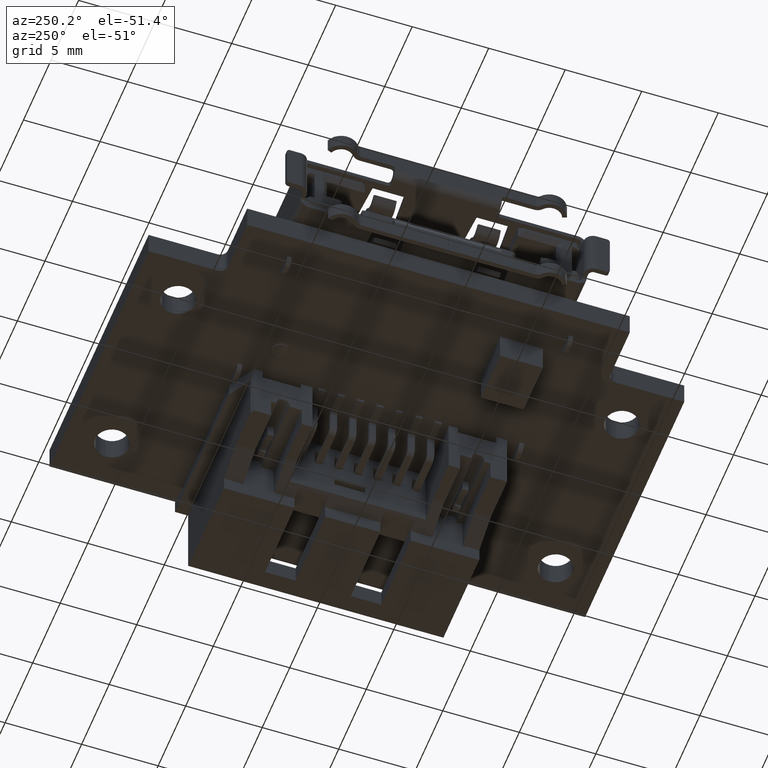
[diagram: clean part render]
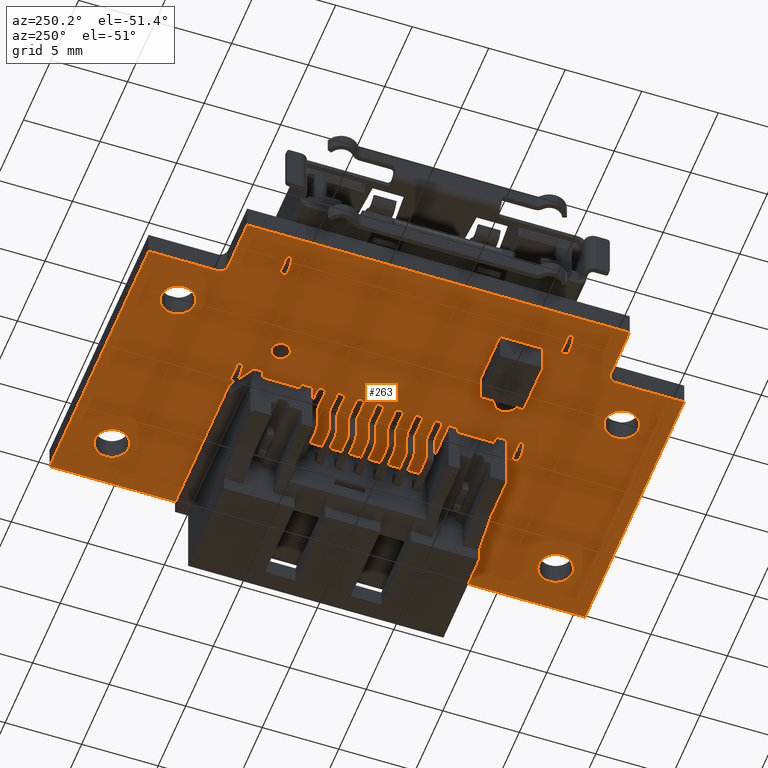
[diagram: same view with one face highlighted and labeled with its STEP entity id]
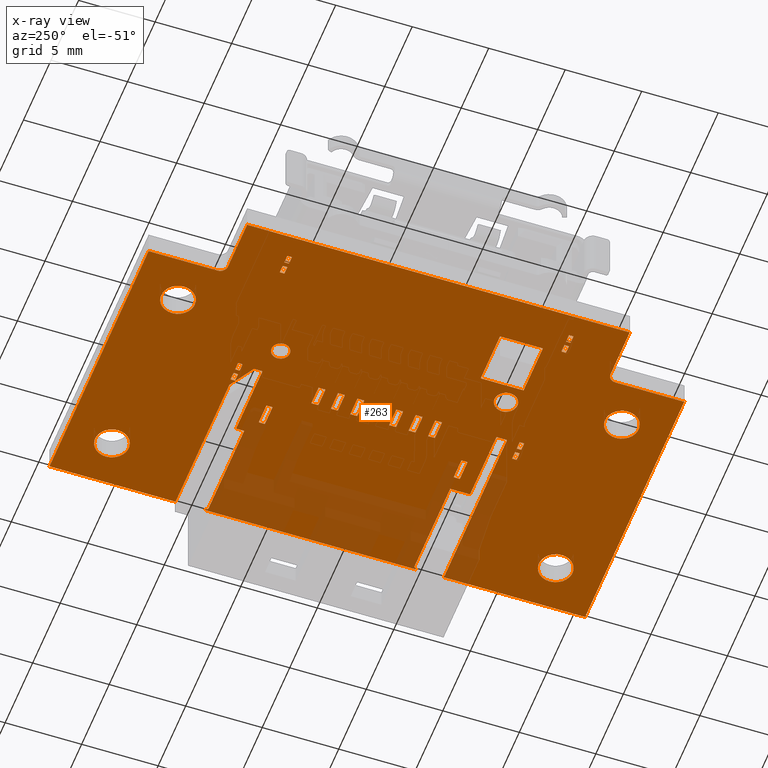
[diagram: x-ray of the same camera — body ghosted, the highlighted face saturated]
A machine part, auxiliary view. The second image highlights one B-rep face of the part: STEP entity #263.
The next image is the same camera in x-ray: the body ghosted, the highlighted face saturated — about 12% of this face is hidden behind the body in this view.
In plain terms, the highlighted planar face has unit normal (0, 0, -1).
Its self-contained STEP definition (entity closure, byte-faithful):
#263=ADVANCED_FACE('',(#2965,#2966,#2967,#2968,#2969,#2970,#2971,#2972,#2973,
#2974,#2975,#2976,#2977,#2978,#2979,#2980,#2981,#2982,#2983,#2984,#2985,
#2986,#2987,#2988,#1605),#12381,.T.);
#1605=FACE_OUTER_BOUND('',#3068,.F.);
#2965=FACE_BOUND('',#3044,.F.);
#2966=FACE_BOUND('',#3045,.F.);
#2967=FACE_BOUND('',#3046,.F.);
#2968=FACE_BOUND('',#3047,.F.);
#2969=FACE_BOUND('',#3048,.F.);
#2970=FACE_BOUND('',#3049,.F.);
#2971=FACE_BOUND('',#3050,.F.);
#2972=FACE_BOUND('',#3051,.F.);
#2973=FACE_BOUND('',#3052,.F.);
#2974=FACE_BOUND('',#3053,.F.);
#2975=FACE_BOUND('',#3054,.F.);
#2976=FACE_BOUND('',#3055,.F.);
#2977=FACE_BOUND('',#3056,.F.);
#2978=FACE_BOUND('',#3057,.F.);
#2979=FACE_BOUND('',#3058,.F.);
#2980=FACE_BOUND('',#3059,.F.);
#2981=FACE_BOUND('',#3060,.F.);
#2982=FACE_BOUND('',#3061,.F.);
#2983=FACE_BOUND('',#3062,.F.);
#2984=FACE_BOUND('',#3063,.F.);
#2985=FACE_BOUND('',#3064,.F.);
#2986=FACE_BOUND('',#3065,.F.);
#2987=FACE_BOUND('',#3066,.F.);
#2988=FACE_BOUND('',#3067,.F.);
#3044=EDGE_LOOP('',(#4547,#4548,#4549,#4550));
#3045=EDGE_LOOP('',(#4551,#4552,#4553,#4554));
#3046=EDGE_LOOP('',(#4555,#4556,#4557,#4558));
#3047=EDGE_LOOP('',(#4559,#4560,#4561,#4562));
#3048=EDGE_LOOP('',(#4563,#4564,#4565,#4566));
#3049=EDGE_LOOP('',(#4567,#4568,#4569,#4570));
#3050=EDGE_LOOP('',(#4571,#4572,#4573,#4574));
#3051=EDGE_LOOP('',(#4575,#4576,#4577,#4578));
#3052=EDGE_LOOP('',(#4579,#4580,#4581,#4582));
#3053=EDGE_LOOP('',(#4583,#4584));
#3054=EDGE_LOOP('',(#4585,#4586));
#3055=EDGE_LOOP('',(#4587,#4588));
#3056=EDGE_LOOP('',(#4589,#4590));
#3057=EDGE_LOOP('',(#4591,#4592,#4593,#4594));
#3058=EDGE_LOOP('',(#4595,#4596,#4597,#4598));
#3059=EDGE_LOOP('',(#4599,#4600,#4601,#4602));
#3060=EDGE_LOOP('',(#4603,#4604,#4605,#4606));
#3061=EDGE_LOOP('',(#4607,#4608,#4609,#4610));
#3062=EDGE_LOOP('',(#4611,#4612,#4613,#4614));
#3063=EDGE_LOOP('',(#4615,#4616,#4617,#4618));
#3064=EDGE_LOOP('',(#4619,#4620,#4621,#4622));
#3065=EDGE_LOOP('',(#4623,#4624));
#3066=EDGE_LOOP('',(#4625,#4626));
#3067=EDGE_LOOP('',(#4627,#4628,#4629,#4630));
#3068=EDGE_LOOP('',(#4631,#4632,#4633,#4634,#4635,#4636,#4637,#4638,#4639,
#4640,#4641,#4642,#4643,#4644,#4645,#4646,#4647,#4648,#4649,#4650,#4651,
#4652,#4653,#4654,#4655,#4656));
#4547=ORIENTED_EDGE('',*,*,#13999,.T.);
#4548=ORIENTED_EDGE('',*,*,#13997,.T.);
#4549=ORIENTED_EDGE('',*,*,#13998,.F.);
#4550=ORIENTED_EDGE('',*,*,#13996,.T.);
#4551=ORIENTED_EDGE('',*,*,#13995,.T.);
#4552=ORIENTED_EDGE('',*,*,#13993,.T.);
#4553=ORIENTED_EDGE('',*,*,#13994,.F.);
#4554=ORIENTED_EDGE('',*,*,#13992,.T.);
#4555=ORIENTED_EDGE('',*,*,#13991,.T.);
#4556=ORIENTED_EDGE('',*,*,#13989,.T.);
#4557=ORIENTED_EDGE('',*,*,#13990,.F.);
#4558=ORIENTED_EDGE('',*,*,#13988,.T.);
#4559=ORIENTED_EDGE('',*,*,#13987,.T.);
#4560=ORIENTED_EDGE('',*,*,#13985,.T.);
#4561=ORIENTED_EDGE('',*,*,#13986,.F.);
#4562=ORIENTED_EDGE('',*,*,#13984,.T.);
#4563=ORIENTED_EDGE('',*,*,#13983,.T.);
#4564=ORIENTED_EDGE('',*,*,#13981,.T.);
#4565=ORIENTED_EDGE('',*,*,#13982,.F.);
#4566=ORIENTED_EDGE('',*,*,#13980,.T.);
#4567=ORIENTED_EDGE('',*,*,#13979,.T.);
#4568=ORIENTED_EDGE('',*,*,#13977,.T.);
#4569=ORIENTED_EDGE('',*,*,#13978,.F.);
#4570=ORIENTED_EDGE('',*,*,#13976,.T.);
#4571=ORIENTED_EDGE('',*,*,#13975,.T.);
#4572=ORIENTED_EDGE('',*,*,#13973,.T.);
#4573=ORIENTED_EDGE('',*,*,#13974,.F.);
#4574=ORIENTED_EDGE('',*,*,#13966,.T.);
#4575=ORIENTED_EDGE('',*,*,#13946,.T.);
#4576=ORIENTED_EDGE('',*,*,#13945,.T.);
#4577=ORIENTED_EDGE('',*,*,#13944,.T.);
#4578=ORIENTED_EDGE('',*,*,#13943,.T.);
#4579=ORIENTED_EDGE('',*,*,#13950,.T.);
#4580=ORIENTED_EDGE('',*,*,#13949,.T.);
#4581=ORIENTED_EDGE('',*,*,#13948,.T.);
#4582=ORIENTED_EDGE('',*,*,#13947,.T.);
#4583=ORIENTED_EDGE('',*,*,#14115,.T.);
#4584=ORIENTED_EDGE('',*,*,#14113,.T.);
#4585=ORIENTED_EDGE('',*,*,#14123,.T.);
#4586=ORIENTED_EDGE('',*,*,#14121,.T.);
#4587=ORIENTED_EDGE('',*,*,#14127,.T.);
#4588=ORIENTED_EDGE('',*,*,#14125,.T.);
#4589=ORIENTED_EDGE('',*,*,#14119,.T.);
#4590=ORIENTED_EDGE('',*,*,#14117,.T.);
#4591=ORIENTED_EDGE('',*,*,#14039,.F.);
#4592=ORIENTED_EDGE('',*,*,#14036,.T.);
#4593=ORIENTED_EDGE('',*,*,#14037,.T.);
#4594=ORIENTED_EDGE('',*,*,#14038,.T.);
#4595=ORIENTED_EDGE('',*,*,#14035,.T.);
#4596=ORIENTED_EDGE('',*,*,#14034,.F.);
#4597=ORIENTED_EDGE('',*,*,#14033,.T.);
#4598=ORIENTED_EDGE('',*,*,#14032,.T.);
#4599=ORIENTED_EDGE('',*,*,#14031,.T.);
#4600=ORIENTED_EDGE('',*,*,#14030,.F.);
#4601=ORIENTED_EDGE('',*,*,#14029,.T.);
#4602=ORIENTED_EDGE('',*,*,#14028,.F.);
#4603=ORIENTED_EDGE('',*,*,#14027,.T.);
#4604=ORIENTED_EDGE('',*,*,#14026,.T.);
#4605=ORIENTED_EDGE('',*,*,#14025,.T.);
#4606=ORIENTED_EDGE('',*,*,#14024,.T.);
#4607=ORIENTED_EDGE('',*,*,#14023,.T.);
#4608=ORIENTED_EDGE('',*,*,#14022,.T.);
#4609=ORIENTED_EDGE('',*,*,#14021,.F.);
#4610=ORIENTED_EDGE('',*,*,#14020,.T.);
#4611=ORIENTED_EDGE('',*,*,#14019,.T.);
#4612=ORIENTED_EDGE('',*,*,#14018,.F.);
#4613=ORIENTED_EDGE('',*,*,#14017,.T.);
#4614=ORIENTED_EDGE('',*,*,#14016,.T.);
#4615=ORIENTED_EDGE('',*,*,#14015,.T.);
#4616=ORIENTED_EDGE('',*,*,#14014,.F.);
#4617=ORIENTED_EDGE('',*,*,#14013,.T.);
#4618=ORIENTED_EDGE('',*,*,#14012,.T.);
#4619=ORIENTED_EDGE('',*,*,#14011,.T.);
#4620=ORIENTED_EDGE('',*,*,#14010,.F.);
#4621=ORIENTED_EDGE('',*,*,#14009,.T.);
#4622=ORIENTED_EDGE('',*,*,#14008,.T.);
#4623=ORIENTED_EDGE('',*,*,#14007,.T.);
#4624=ORIENTED_EDGE('',*,*,#14006,.T.);
#4625=ORIENTED_EDGE('',*,*,#14005,.T.);
#4626=ORIENTED_EDGE('',*,*,#14004,.T.);
#4627=ORIENTED_EDGE('',*,*,#13936,.T.);
#4628=ORIENTED_EDGE('',*,*,#13937,.T.);
#4629=ORIENTED_EDGE('',*,*,#13938,.T.);
#4630=ORIENTED_EDGE('',*,*,#13935,.T.);
#4631=ORIENTED_EDGE('',*,*,#14139,.T.);
#4632=ORIENTED_EDGE('',*,*,#14149,.T.);
#4633=ORIENTED_EDGE('',*,*,#14003,.T.);
#4634=ORIENTED_EDGE('',*,*,#13972,.T.);
#4635=ORIENTED_EDGE('',*,*,#13962,.T.);
#4636=ORIENTED_EDGE('',*,*,#13969,.T.);
#4637=ORIENTED_EDGE('',*,*,#13967,.T.);
#4638=ORIENTED_EDGE('',*,*,#13965,.T.);
#4639=ORIENTED_EDGE('',*,*,#13964,.T.);
#4640=ORIENTED_EDGE('',*,*,#14001,.T.);
#4641=ORIENTED_EDGE('',*,*,#13971,.T.);
#4642=ORIENTED_EDGE('',*,*,#13970,.T.);
#4643=ORIENTED_EDGE('',*,*,#13968,.T.);
#4644=ORIENTED_EDGE('',*,*,#13963,.T.);
#4645=ORIENTED_EDGE('',*,*,#13961,.T.);
#4646=ORIENTED_EDGE('',*,*,#13960,.T.);
#4647=ORIENTED_EDGE('',*,*,#13959,.T.);
#4648=ORIENTED_EDGE('',*,*,#14148,.T.);
#4649=ORIENTED_EDGE('',*,*,#14147,.T.);
#4650=ORIENTED_EDGE('',*,*,#14146,.T.);
#4651=ORIENTED_EDGE('',*,*,#14145,.T.);
#4652=ORIENTED_EDGE('',*,*,#14144,.T.);
#4653=ORIENTED_EDGE('',*,*,#14143,.T.);
#4654=ORIENTED_EDGE('',*,*,#14142,.T.);
#4655=ORIENTED_EDGE('',*,*,#14141,.T.);
#4656=ORIENTED_EDGE('',*,*,#14140,.T.);
#12381=PLANE('',#27933);
#13527=CIRCLE('',#27524,0.749962272120906);
#13528=CIRCLE('',#27525,0.749962272120906);
#13529=CIRCLE('',#27526,0.599972297418407);
#13530=CIRCLE('',#27527,0.599972297418407);
#13532=CIRCLE('',#27529,1.1);
#13534=CIRCLE('',#27531,1.1);
#13536=CIRCLE('',#27533,1.1);
#13538=CIRCLE('',#27535,1.1);
#13540=CIRCLE('',#27537,1.1);
#13542=CIRCLE('',#27539,1.1);
#13544=CIRCLE('',#27541,1.1);
#13546=CIRCLE('',#27543,1.1);
#13549=CIRCLE('',#27546,0.5);
#13550=CIRCLE('',#27547,0.5);
#13935=EDGE_CURVE('',#27494,#27493,#17903,.T.);
#13936=EDGE_CURVE('',#27493,#27492,#17904,.T.);
#13937=EDGE_CURVE('',#27492,#27491,#17905,.T.);
#13938=EDGE_CURVE('',#27491,#27494,#17906,.T.);
#13943=EDGE_CURVE('',#27486,#27485,#17911,.T.);
#13944=EDGE_CURVE('',#27484,#27486,#17912,.T.);
#13945=EDGE_CURVE('',#27483,#27484,#17913,.T.);
#13946=EDGE_CURVE('',#27485,#27483,#17914,.T.);
#13947=EDGE_CURVE('',#27482,#27481,#17915,.T.);
#13948=EDGE_CURVE('',#27480,#27482,#17916,.T.);
#13949=EDGE_CURVE('',#27479,#27480,#17917,.T.);
#13950=EDGE_CURVE('',#27481,#27479,#17918,.T.);
#13959=EDGE_CURVE('',#27470,#27469,#17927,.T.);
#13960=EDGE_CURVE('',#27468,#27470,#17928,.T.);
#13961=EDGE_CURVE('',#27467,#27468,#17929,.T.);
#13962=EDGE_CURVE('',#27466,#27465,#17930,.T.);
#13963=EDGE_CURVE('',#27464,#27467,#17931,.T.);
#13964=EDGE_CURVE('',#27463,#27462,#17932,.T.);
#13965=EDGE_CURVE('',#27461,#27463,#17933,.T.);
#13966=EDGE_CURVE('',#27460,#27459,#17934,.T.);
#13967=EDGE_CURVE('',#27458,#27461,#17935,.T.);
#13968=EDGE_CURVE('',#27457,#27464,#17936,.T.);
#13969=EDGE_CURVE('',#27465,#27458,#17937,.T.);
#13970=EDGE_CURVE('',#27456,#27457,#17938,.T.);
#13971=EDGE_CURVE('',#27455,#27456,#17939,.T.);
#13972=EDGE_CURVE('',#27454,#27466,#17940,.T.);
#13973=EDGE_CURVE('',#27453,#27452,#17941,.T.);
#13974=EDGE_CURVE('',#27460,#27452,#17942,.T.);
#13975=EDGE_CURVE('',#27459,#27453,#17943,.T.);
#13976=EDGE_CURVE('',#27451,#27450,#17944,.T.);
#13977=EDGE_CURVE('',#27449,#27448,#17945,.T.);
#13978=EDGE_CURVE('',#27451,#27448,#17946,.T.);
#13979=EDGE_CURVE('',#27450,#27449,#17947,.T.);
#13980=EDGE_CURVE('',#27447,#27446,#17948,.T.);
#13981=EDGE_CURVE('',#27445,#27444,#17949,.T.);
#13982=EDGE_CURVE('',#27447,#27444,#17950,.T.);
#13983=EDGE_CURVE('',#27446,#27445,#17951,.T.);
#13984=EDGE_CURVE('',#27443,#27442,#17952,.T.);
#13985=EDGE_CURVE('',#27441,#27440,#17953,.T.);
#13986=EDGE_CURVE('',#27443,#27440,#17954,.T.);
#13987=EDGE_CURVE('',#27442,#27441,#17955,.T.);
#13988=EDGE_CURVE('',#27439,#27438,#17956,.T.);
#13989=EDGE_CURVE('',#27437,#27436,#17957,.T.);
#13990=EDGE_CURVE('',#27439,#27436,#17958,.T.);
#13991=EDGE_CURVE('',#27438,#27437,#17959,.T.);
#13992=EDGE_CURVE('',#27435,#27434,#17960,.T.);
#13993=EDGE_CURVE('',#27433,#27432,#17961,.T.);
#13994=EDGE_CURVE('',#27435,#27432,#17962,.T.);
#13995=EDGE_CURVE('',#27434,#27433,#17963,.T.);
#13996=EDGE_CURVE('',#27431,#27430,#17964,.T.);
#13997=EDGE_CURVE('',#27429,#27428,#17965,.T.);
#13998=EDGE_CURVE('',#27431,#27428,#17966,.T.);
#13999=EDGE_CURVE('',#27430,#27429,#17967,.T.);
#14001=EDGE_CURVE('',#27462,#27455,#17969,.T.);
#14003=EDGE_CURVE('',#27427,#27454,#17971,.T.);
#14004=EDGE_CURVE('',#27426,#27425,#13527,.T.);
#14005=EDGE_CURVE('',#27425,#27426,#13528,.T.);
#14006=EDGE_CURVE('',#27424,#27423,#13529,.T.);
#14007=EDGE_CURVE('',#27423,#27424,#13530,.T.);
#14008=EDGE_CURVE('',#27422,#27421,#17972,.T.);
#14009=EDGE_CURVE('',#27420,#27422,#17973,.T.);
#14010=EDGE_CURVE('',#27420,#27419,#17974,.T.);
#14011=EDGE_CURVE('',#27421,#27419,#17975,.T.);
#14012=EDGE_CURVE('',#27418,#27417,#17976,.T.);
#14013=EDGE_CURVE('',#27416,#27418,#17977,.T.);
#14014=EDGE_CURVE('',#27416,#27415,#17978,.T.);
#14015=EDGE_CURVE('',#27417,#27415,#17979,.T.);
#14016=EDGE_CURVE('',#27414,#27413,#17980,.T.);
#14017=EDGE_CURVE('',#27412,#27414,#17981,.T.);
#14018=EDGE_CURVE('',#27412,#27411,#17982,.T.);
#14019=EDGE_CURVE('',#27413,#27411,#17983,.T.);
#14020=EDGE_CURVE('',#27410,#27409,#17984,.T.);
#14021=EDGE_CURVE('',#27410,#27408,#17985,.T.);
#14022=EDGE_CURVE('',#27407,#27408,#17986,.T.);
#14023=EDGE_CURVE('',#27409,#27407,#17987,.T.);
#14024=EDGE_CURVE('',#27406,#27405,#17988,.T.);
#14025=EDGE_CURVE('',#27404,#27406,#17989,.T.);
#14026=EDGE_CURVE('',#27403,#27404,#17990,.T.);
#14027=EDGE_CURVE('',#27405,#27403,#17991,.T.);
#14028=EDGE_CURVE('',#27402,#27401,#17992,.T.);
#14029=EDGE_CURVE('',#27400,#27401,#17993,.T.);
#14030=EDGE_CURVE('',#27400,#27399,#17994,.T.);
#14031=EDGE_CURVE('',#27402,#27399,#17995,.T.);
#14032=EDGE_CURVE('',#27398,#27397,#17996,.T.);
#14033=EDGE_CURVE('',#27396,#27398,#17997,.T.);
#14034=EDGE_CURVE('',#27396,#27395,#17998,.T.);
#14035=EDGE_CURVE('',#27397,#27395,#17999,.T.);
#14036=EDGE_CURVE('',#27394,#27393,#18000,.T.);
#14037=EDGE_CURVE('',#27393,#27392,#18001,.T.);
#14038=EDGE_CURVE('',#27392,#27391,#18002,.T.);
#14039=EDGE_CURVE('',#27394,#27391,#18003,.T.);
#14113=EDGE_CURVE('',#27316,#27315,#13532,.T.);
#14115=EDGE_CURVE('',#27315,#27316,#13534,.T.);
#14117=EDGE_CURVE('',#27312,#27311,#13536,.T.);
#14119=EDGE_CURVE('',#27311,#27312,#13538,.T.);
#14121=EDGE_CURVE('',#27308,#27307,#13540,.T.);
#14123=EDGE_CURVE('',#27307,#27308,#13542,.T.);
#14125=EDGE_CURVE('',#27304,#27303,#13544,.T.);
#14127=EDGE_CURVE('',#27303,#27304,#13546,.T.);
#14139=EDGE_CURVE('',#27291,#27290,#18085,.T.);
#14140=EDGE_CURVE('',#27289,#27291,#18086,.T.);
#14141=EDGE_CURVE('',#27288,#27289,#13549,.T.);
#14142=EDGE_CURVE('',#27287,#27288,#18087,.T.);
#14143=EDGE_CURVE('',#27286,#27287,#18088,.T.);
#14144=EDGE_CURVE('',#27285,#27286,#18089,.T.);
#14145=EDGE_CURVE('',#27284,#27285,#13550,.T.);
#14146=EDGE_CURVE('',#27283,#27284,#18090,.T.);
#14147=EDGE_CURVE('',#27282,#27283,#18091,.T.);
#14148=EDGE_CURVE('',#27469,#27282,#18092,.T.);
#14149=EDGE_CURVE('',#27290,#27427,#18093,.T.);
#17903=LINE('',#38810,#21423);
#17904=LINE('',#38811,#21424);
#17905=LINE('',#38812,#21425);
#17906=LINE('',#38813,#21426);
#17911=LINE('',#38818,#21431);
#17912=LINE('',#38819,#21432);
#17913=LINE('',#38820,#21433);
#17914=LINE('',#38821,#21434);
#17915=LINE('',#38822,#21435);
#17916=LINE('',#38823,#21436);
#17917=LINE('',#38824,#21437);
#17918=LINE('',#38825,#21438);
#17927=LINE('',#38834,#21447);
#17928=LINE('',#38835,#21448);
#17929=LINE('',#38836,#21449);
#17930=LINE('',#38837,#21450);
#17931=LINE('',#38838,#21451);
#17932=LINE('',#38839,#21452);
#17933=LINE('',#38840,#21453);
#17934=LINE('',#38841,#21454);
#17935=LINE('',#38842,#21455);
#17936=LINE('',#38843,#21456);
#17937=LINE('',#38844,#21457);
#17938=LINE('',#38845,#21458);
#17939=LINE('',#38846,#21459);
#17940=LINE('',#38847,#21460);
#17941=LINE('',#38848,#21461);
#17942=LINE('',#38849,#21462);
#17943=LINE('',#38850,#21463);
#17944=LINE('',#38851,#21464);
#17945=LINE('',#38852,#21465);
#17946=LINE('',#38853,#21466);
#17947=LINE('',#38854,#21467);
#17948=LINE('',#38855,#21468);
#17949=LINE('',#38856,#21469);
#17950=LINE('',#38857,#21470);
#17951=LINE('',#38858,#21471);
#17952=LINE('',#38859,#21472);
#17953=LINE('',#38860,#21473);
#17954=LINE('',#38861,#21474);
#17955=LINE('',#38862,#21475);
#17956=LINE('',#38863,#21476);
#17957=LINE('',#38864,#21477);
#17958=LINE('',#38865,#21478);
#17959=LINE('',#38866,#21479);
#17960=LINE('',#38867,#21480);
#17961=LINE('',#38868,#21481);
#17962=LINE('',#38869,#21482);
#17963=LINE('',#38870,#21483);
#17964=LINE('',#38871,#21484);
#17965=LINE('',#38872,#21485);
#17966=LINE('',#38873,#21486);
#17967=LINE('',#38874,#21487);
#17969=LINE('',#38876,#21489);
#17971=LINE('',#38878,#21491);
#17972=LINE('',#38883,#21492);
#17973=LINE('',#38884,#21493);
#17974=LINE('',#38885,#21494);
#17975=LINE('',#38886,#21495);
#17976=LINE('',#38887,#21496);
#17977=LINE('',#38888,#21497);
#17978=LINE('',#38889,#21498);
#17979=LINE('',#38890,#21499);
#17980=LINE('',#38891,#21500);
#17981=LINE('',#38892,#21501);
#17982=LINE('',#38893,#21502);
#17983=LINE('',#38894,#21503);
#17984=LINE('',#38895,#21504);
#17985=LINE('',#38896,#21505);
#17986=LINE('',#38897,#21506);
#17987=LINE('',#38898,#21507);
#17988=LINE('',#38899,#21508);
#17989=LINE('',#38900,#21509);
#17990=LINE('',#38901,#21510);
#17991=LINE('',#38902,#21511);
#17992=LINE('',#38903,#21512);
#17993=LINE('',#38904,#21513);
#17994=LINE('',#38905,#21514);
#17995=LINE('',#38906,#21515);
#17996=LINE('',#38907,#21516);
#17997=LINE('',#38908,#21517);
#17998=LINE('',#38909,#21518);
#17999=LINE('',#38910,#21519);
#18000=LINE('',#38911,#21520);
#18001=LINE('',#38912,#21521);
#18002=LINE('',#38913,#21522);
#18003=LINE('',#38914,#21523);
#18085=LINE('',#39014,#21605);
#18086=LINE('',#39015,#21606);
#18087=LINE('',#39017,#21607);
#18088=LINE('',#39018,#21608);
#18089=LINE('',#39019,#21609);
#18090=LINE('',#39021,#21610);
#18091=LINE('',#39022,#21611);
#18092=LINE('',#39023,#21612);
#18093=LINE('',#39024,#21613);
#21423=VECTOR('',#29264,3.5);
#21424=VECTOR('',#29265,2.8);
#21425=VECTOR('',#29266,3.5);
#21426=VECTOR('',#29267,2.8);
#21431=VECTOR('',#29272,1.39999999999999);
#21432=VECTOR('',#29273,0.399999999999999);
#21433=VECTOR('',#29274,1.40000000000001);
#21434=VECTOR('',#29275,0.399999999999991);
#21435=VECTOR('',#29276,1.39999999999999);
#21436=VECTOR('',#29277,0.399999999999999);
#21437=VECTOR('',#29278,1.40000000000001);
#21438=VECTOR('',#29279,0.400000000000002);
#21447=VECTOR('',#29288,9.78);
#21448=VECTOR('',#29289,1.9723082923316);
#21449=VECTOR('',#29290,0.555000000000001);
#21450=VECTOR('',#29291,0.694999999999996);
#21451=VECTOR('',#29292,4.8);
#21452=VECTOR('',#29293,0.240416305603416);
#21453=VECTOR('',#29294,6.51);
#21454=VECTOR('',#29295,1.30000000000001);
#21455=VECTOR('',#29296,1.295);
#21456=VECTOR('',#29297,0.534999999999997);
#21457=VECTOR('',#29298,4.8);
#21458=VECTOR('',#29299,6.51000000000001);
#21459=VECTOR('',#29300,0.240416305603424);
#21460=VECTOR('',#29301,11.48);
#21461=VECTOR('',#29302,1.3);
#21462=VECTOR('',#29303,0.450000000000003);
#21463=VECTOR('',#29304,0.450000000000003);
#21464=VECTOR('',#29305,1.30000000000001);
#21465=VECTOR('',#29306,1.3);
#21466=VECTOR('',#29307,0.449999999999996);
#21467=VECTOR('',#29308,0.450000000000003);
#21468=VECTOR('',#29309,1.30000000000001);
#21469=VECTOR('',#29310,1.3);
#21470=VECTOR('',#29311,0.449999999999996);
#21471=VECTOR('',#29312,0.450000000000003);
#21472=VECTOR('',#29313,1.30000000000001);
#21473=VECTOR('',#29314,1.3);
#21474=VECTOR('',#29315,0.449999999999996);
#21475=VECTOR('',#29316,0.450000000000003);
#21476=VECTOR('',#29317,1.30000000000001);
#21477=VECTOR('',#29318,1.30000000000001);
#21478=VECTOR('',#29319,0.449999999999996);
#21479=VECTOR('',#29320,0.449999999999996);
#21480=VECTOR('',#29321,1.30000000000001);
#21481=VECTOR('',#29322,1.30000000000001);
#21482=VECTOR('',#29323,0.449999999999996);
#21483=VECTOR('',#29324,0.449999999999996);
#21484=VECTOR('',#29325,1.30000000000001);
#21485=VECTOR('',#29326,1.30000000000001);
#21486=VECTOR('',#29327,0.449999999999996);
#21487=VECTOR('',#29328,0.449999999999996);
#21489=VECTOR('',#29330,13.8);
#21491=VECTOR('',#29332,9.23000000000011);
#21492=VECTOR('',#29341,0.300000000000004);
#21493=VECTOR('',#29342,0.533739716558884);
#21494=VECTOR('',#29343,0.300000000000004);
#21495=VECTOR('',#29344,0.533739716558856);
#21496=VECTOR('',#29345,0.300000000000004);
#21497=VECTOR('',#29346,0.53373971655887);
#21498=VECTOR('',#29347,0.300000000000004);
#21499=VECTOR('',#29348,0.53373971655887);
#21500=VECTOR('',#29349,0.299999999999997);
#21501=VECTOR('',#29350,0.53373971655887);
#21502=VECTOR('',#29351,0.299999999999997);
#21503=VECTOR('',#29352,0.53373971655887);
#21504=VECTOR('',#29353,0.53373971655887);
#21505=VECTOR('',#29354,0.299999999999997);
#21506=VECTOR('',#29355,0.53373971655887);
#21507=VECTOR('',#29356,0.299999999999997);
#21508=VECTOR('',#29357,0.300000000000004);
#21509=VECTOR('',#29358,0.53373971655887);
#21510=VECTOR('',#29359,0.300000000000004);
#21511=VECTOR('',#29360,0.53373971655887);
#21512=VECTOR('',#29361,0.300000000000004);
#21513=VECTOR('',#29362,0.53373971655887);
#21514=VECTOR('',#29363,0.300000000000004);
#21515=VECTOR('',#29364,0.53373971655887);
#21516=VECTOR('',#29365,0.299999999999997);
#21517=VECTOR('',#29366,0.53373971655887);
#21518=VECTOR('',#29367,0.299999999999997);
#21519=VECTOR('',#29368,0.53373971655887);
#21520=VECTOR('',#29369,0.53373971655887);
#21521=VECTOR('',#29370,0.299999999999997);
#21522=VECTOR('',#29371,0.53373971655887);
#21523=VECTOR('',#29372,0.299999999999997);
#21605=VECTOR('',#29490,3.00000000000006);
#21606=VECTOR('',#29491,1.50000000000364);
#21607=VECTOR('',#29494,3.50000000000011);
#21608=VECTOR('',#29495,25.0000000000002);
#21609=VECTOR('',#29496,3.50000000000011);
#21610=VECTOR('',#29499,4.50000000000381);
#21611=VECTOR('',#29500,18.0000000000009);
#21612=VECTOR('',#29501,8.23000000000009);
#21613=VECTOR('',#29502,18.0000000000009);
#27282=VERTEX_POINT('',#38597);
#27283=VERTEX_POINT('',#38598);
#27284=VERTEX_POINT('',#38599);
#27285=VERTEX_POINT('',#38600);
#27286=VERTEX_POINT('',#38601);
#27287=VERTEX_POINT('',#38602);
#27288=VERTEX_POINT('',#38603);
#27289=VERTEX_POINT('',#38604);
#27290=VERTEX_POINT('',#38605);
#27291=VERTEX_POINT('',#38606);
#27303=VERTEX_POINT('',#38618);
#27304=VERTEX_POINT('',#38619);
#27307=VERTEX_POINT('',#38622);
#27308=VERTEX_POINT('',#38623);
#27311=VERTEX_POINT('',#38626);
#27312=VERTEX_POINT('',#38627);
#27315=VERTEX_POINT('',#38630);
#27316=VERTEX_POINT('',#38631);
#27391=VERTEX_POINT('',#38706);
#27392=VERTEX_POINT('',#38707);
#27393=VERTEX_POINT('',#38708);
#27394=VERTEX_POINT('',#38709);
#27395=VERTEX_POINT('',#38710);
#27396=VERTEX_POINT('',#38711);
#27397=VERTEX_POINT('',#38712);
#27398=VERTEX_POINT('',#38713);
#27399=VERTEX_POINT('',#38714);
#27400=VERTEX_POINT('',#38715);
#27401=VERTEX_POINT('',#38716);
#27402=VERTEX_POINT('',#38717);
#27403=VERTEX_POINT('',#38718);
#27404=VERTEX_POINT('',#38719);
#27405=VERTEX_POINT('',#38720);
#27406=VERTEX_POINT('',#38721);
#27407=VERTEX_POINT('',#38722);
#27408=VERTEX_POINT('',#38723);
#27409=VERTEX_POINT('',#38724);
#27410=VERTEX_POINT('',#38725);
#27411=VERTEX_POINT('',#38726);
#27412=VERTEX_POINT('',#38727);
#27413=VERTEX_POINT('',#38728);
#27414=VERTEX_POINT('',#38729);
#27415=VERTEX_POINT('',#38730);
#27416=VERTEX_POINT('',#38731);
#27417=VERTEX_POINT('',#38732);
#27418=VERTEX_POINT('',#38733);
#27419=VERTEX_POINT('',#38734);
#27420=VERTEX_POINT('',#38735);
#27421=VERTEX_POINT('',#38736);
#27422=VERTEX_POINT('',#38737);
#27423=VERTEX_POINT('',#38738);
#27424=VERTEX_POINT('',#38739);
#27425=VERTEX_POINT('',#38740);
#27426=VERTEX_POINT('',#38741);
#27427=VERTEX_POINT('',#38742);
#27428=VERTEX_POINT('',#38743);
#27429=VERTEX_POINT('',#38744);
#27430=VERTEX_POINT('',#38745);
#27431=VERTEX_POINT('',#38746);
#27432=VERTEX_POINT('',#38747);
#27433=VERTEX_POINT('',#38748);
#27434=VERTEX_POINT('',#38749);
#27435=VERTEX_POINT('',#38750);
#27436=VERTEX_POINT('',#38751);
#27437=VERTEX_POINT('',#38752);
#27438=VERTEX_POINT('',#38753);
#27439=VERTEX_POINT('',#38754);
#27440=VERTEX_POINT('',#38755);
#27441=VERTEX_POINT('',#38756);
#27442=VERTEX_POINT('',#38757);
#27443=VERTEX_POINT('',#38758);
#27444=VERTEX_POINT('',#38759);
#27445=VERTEX_POINT('',#38760);
#27446=VERTEX_POINT('',#38761);
#27447=VERTEX_POINT('',#38762);
#27448=VERTEX_POINT('',#38763);
#27449=VERTEX_POINT('',#38764);
#27450=VERTEX_POINT('',#38765);
#27451=VERTEX_POINT('',#38766);
#27452=VERTEX_POINT('',#38767);
#27453=VERTEX_POINT('',#38768);
#27454=VERTEX_POINT('',#38769);
#27455=VERTEX_POINT('',#38770);
#27456=VERTEX_POINT('',#38771);
#27457=VERTEX_POINT('',#38772);
#27458=VERTEX_POINT('',#38773);
#27459=VERTEX_POINT('',#38774);
#27460=VERTEX_POINT('',#38775);
#27461=VERTEX_POINT('',#38776);
#27462=VERTEX_POINT('',#38777);
#27463=VERTEX_POINT('',#38778);
#27464=VERTEX_POINT('',#38779);
#27465=VERTEX_POINT('',#38780);
#27466=VERTEX_POINT('',#38781);
#27467=VERTEX_POINT('',#38782);
#27468=VERTEX_POINT('',#38783);
#27469=VERTEX_POINT('',#38784);
#27470=VERTEX_POINT('',#38785);
#27479=VERTEX_POINT('',#38794);
#27480=VERTEX_POINT('',#38795);
#27481=VERTEX_POINT('',#38796);
#27482=VERTEX_POINT('',#38797);
#27483=VERTEX_POINT('',#38798);
#27484=VERTEX_POINT('',#38799);
#27485=VERTEX_POINT('',#38800);
#27486=VERTEX_POINT('',#38801);
#27491=VERTEX_POINT('',#38806);
#27492=VERTEX_POINT('',#38807);
#27493=VERTEX_POINT('',#38808);
#27494=VERTEX_POINT('',#38809);
#27524=AXIS2_PLACEMENT_3D('',#38879,#29333,#29334);
#27525=AXIS2_PLACEMENT_3D('',#38880,#29335,#29336);
#27526=AXIS2_PLACEMENT_3D('',#38881,#29337,#29338);
#27527=AXIS2_PLACEMENT_3D('',#38882,#29339,#29340);
#27529=AXIS2_PLACEMENT_3D('',#38988,#29447,#29448);
#27531=AXIS2_PLACEMENT_3D('',#38990,#29451,#29452);
#27533=AXIS2_PLACEMENT_3D('',#38992,#29455,#29456);
#27535=AXIS2_PLACEMENT_3D('',#38994,#29459,#29460);
#27537=AXIS2_PLACEMENT_3D('',#38996,#29463,#29464);
#27539=AXIS2_PLACEMENT_3D('',#38998,#29467,#29468);
#27541=AXIS2_PLACEMENT_3D('',#39000,#29471,#29472);
#27543=AXIS2_PLACEMENT_3D('',#39002,#29475,#29476);
#27546=AXIS2_PLACEMENT_3D('',#39016,#29492,#29493);
#27547=AXIS2_PLACEMENT_3D('',#39020,#29497,#29498);
#27933=AXIS2_PLACEMENT_3D('',#43051,#33602,#33603);
#29264=DIRECTION('',(1.,0.,0.));
#29265=DIRECTION('',(0.,-1.,0.));
#29266=DIRECTION('',(-1.,0.,0.));
#29267=DIRECTION('',(0.,1.,0.));
#29272=DIRECTION('',(1.,0.,0.));
#29273=DIRECTION('',(0.,1.,0.));
#29274=DIRECTION('',(-1.,0.,0.));
#29275=DIRECTION('',(0.,-1.,0.));
#29276=DIRECTION('',(1.,0.,0.));
#29277=DIRECTION('',(0.,1.,0.));
#29278=DIRECTION('',(-1.,0.,0.));
#29279=DIRECTION('',(0.,-1.,0.));
#29288=DIRECTION('',(1.,0.,0.));
#29289=DIRECTION('',(0.861934215157773,0.507020126563388,0.));
#29290=DIRECTION('',(0.,1.,0.));
#29291=DIRECTION('',(0.,1.,0.));
#29292=DIRECTION('',(-1.,0.,0.));
#29293=DIRECTION('',(0.707106781186555,-0.70710678118654,0.));
#29294=DIRECTION('',(1.,0.,0.));
#29295=DIRECTION('',(-1.,0.,0.));
#29296=DIRECTION('',(0.,1.,0.));
#29297=DIRECTION('',(0.,1.,0.));
#29298=DIRECTION('',(1.,0.,0.));
#29299=DIRECTION('',(-1.,0.,0.));
#29300=DIRECTION('',(-0.707106781186533,-0.707106781186562,0.));
#29301=DIRECTION('',(-1.,0.,0.));
#29302=DIRECTION('',(1.,0.,0.));
#29303=DIRECTION('',(0.,1.,0.));
#29304=DIRECTION('',(0.,1.,0.));
#29305=DIRECTION('',(-1.,0.,0.));
#29306=DIRECTION('',(1.,0.,0.));
#29307=DIRECTION('',(0.,1.,0.));
#29308=DIRECTION('',(0.,1.,0.));
#29309=DIRECTION('',(-1.,0.,0.));
#29310=DIRECTION('',(1.,0.,0.));
#29311=DIRECTION('',(0.,1.,0.));
#29312=DIRECTION('',(0.,1.,0.));
#29313=DIRECTION('',(-1.,0.,0.));
#29314=DIRECTION('',(1.,0.,0.));
#29315=DIRECTION('',(0.,1.,0.));
#29316=DIRECTION('',(0.,1.,0.));
#29317=DIRECTION('',(-1.,0.,0.));
#29318=DIRECTION('',(1.,0.,0.));
#29319=DIRECTION('',(0.,1.,0.));
#29320=DIRECTION('',(0.,1.,0.));
#29321=DIRECTION('',(-1.,0.,0.));
#29322=DIRECTION('',(1.,0.,0.));
#29323=DIRECTION('',(0.,1.,0.));
#29324=DIRECTION('',(0.,1.,0.));
#29325=DIRECTION('',(-1.,0.,0.));
#29326=DIRECTION('',(1.,0.,0.));
#29327=DIRECTION('',(0.,1.,0.));
#29328=DIRECTION('',(0.,1.,0.));
#29330=DIRECTION('',(0.,1.,0.));
#29332=DIRECTION('',(0.,1.,0.));
#29333=DIRECTION('',(0.,0.,-1.));
#29334=DIRECTION('',(0.,1.,0.));
#29335=DIRECTION('',(0.,0.,-1.));
#29336=DIRECTION('',(0.,-1.,0.));
#29337=DIRECTION('',(0.,0.,-1.));
#29338=DIRECTION('',(0.,-1.,0.));
#29339=DIRECTION('',(0.,0.,-1.));
#29340=DIRECTION('',(0.,1.,0.));
#29341=DIRECTION('',(0.,-1.,0.));
#29342=DIRECTION('',(1.,0.,0.));
#29343=DIRECTION('',(0.,-1.,0.));
#29344=DIRECTION('',(-1.,0.,0.));
#29345=DIRECTION('',(0.,-1.,0.));
#29346=DIRECTION('',(1.,0.,0.));
#29347=DIRECTION('',(0.,-1.,0.));
#29348=DIRECTION('',(-1.,0.,0.));
#29349=DIRECTION('',(0.,-1.,0.));
#29350=DIRECTION('',(1.,0.,0.));
#29351=DIRECTION('',(0.,-1.,0.));
#29352=DIRECTION('',(-1.,0.,0.));
#29353=DIRECTION('',(1.,0.,0.));
#29354=DIRECTION('',(0.,-1.,0.));
#29355=DIRECTION('',(-1.,0.,0.));
#29356=DIRECTION('',(0.,-1.,0.));
#29357=DIRECTION('',(0.,-1.,0.));
#29358=DIRECTION('',(1.,0.,0.));
#29359=DIRECTION('',(0.,1.,0.));
#29360=DIRECTION('',(-1.,0.,0.));
#29361=DIRECTION('',(0.,1.,0.));
#29362=DIRECTION('',(1.,0.,0.));
#29363=DIRECTION('',(0.,-1.,0.));
#29364=DIRECTION('',(-1.,0.,0.));
#29365=DIRECTION('',(0.,-1.,0.));
#29366=DIRECTION('',(1.,0.,0.));
#29367=DIRECTION('',(0.,-1.,0.));
#29368=DIRECTION('',(-1.,0.,0.));
#29369=DIRECTION('',(1.,0.,0.));
#29370=DIRECTION('',(0.,-1.,0.));
#29371=DIRECTION('',(-1.,0.,0.));
#29372=DIRECTION('',(0.,-1.,0.));
#29447=DIRECTION('',(0.,0.,-1.));
#29448=DIRECTION('',(-1.,0.,0.));
#29451=DIRECTION('',(0.,0.,-1.));
#29452=DIRECTION('',(1.,0.,0.));
#29455=DIRECTION('',(0.,0.,-1.));
#29456=DIRECTION('',(-1.,0.,0.));
#29459=DIRECTION('',(0.,0.,-1.));
#29460=DIRECTION('',(1.,0.,0.));
#29463=DIRECTION('',(0.,0.,-1.));
#29464=DIRECTION('',(-1.,0.,0.));
#29467=DIRECTION('',(0.,0.,-1.));
#29468=DIRECTION('',(1.,0.,0.));
#29471=DIRECTION('',(0.,0.,-1.));
#29472=DIRECTION('',(-1.,0.,0.));
#29475=DIRECTION('',(0.,0.,-1.));
#29476=DIRECTION('',(1.,0.,0.));
#29490=DIRECTION('',(0.,-1.,0.));
#29491=DIRECTION('',(0.,-1.,0.));
#29492=DIRECTION('',(0.,0.,-1.));
#29493=DIRECTION('',(0.,1.,0.));
#29494=DIRECTION('',(1.,0.,0.));
#29495=DIRECTION('',(0.,-1.,0.));
#29496=DIRECTION('',(-1.,0.,0.));
#29497=DIRECTION('',(0.,0.,-1.));
#29498=DIRECTION('',(1.,0.,0.));
#29499=DIRECTION('',(0.,-1.,0.));
#29500=DIRECTION('',(-1.,0.,0.));
#29501=DIRECTION('',(0.,1.,0.));
#29502=DIRECTION('',(1.,0.,0.));
#33602=DIRECTION('',(0.,0.,-1.));
#33603=DIRECTION('',(-1.,0.,0.));
#38597=CARTESIAN_POINT('',(-60.0000000000126,17.5000000000004,5.50000023211529));
#38598=CARTESIAN_POINT('',(-78.0000000000135,17.5000000000004,5.50000023211529));
#38599=CARTESIAN_POINT('',(-78.0000000000137,12.9999999999993,5.50000023211529));
#38600=CARTESIAN_POINT('',(-78.5000000000124,12.5000000000006,5.50000023211529));
#38601=CARTESIAN_POINT('',(-82.0000000000125,12.5000000000004,5.50000023211529));
#38602=CARTESIAN_POINT('',(-82.0000000000125,-12.4999999999998,5.50000023211529));
#38603=CARTESIAN_POINT('',(-78.5000000000124,-12.4999999999984,5.50000023211529));
#38604=CARTESIAN_POINT('',(-78.0000000000132,-12.9999999999969,5.50000023211529));
#38605=CARTESIAN_POINT('',(-78.0000000000135,-17.4999999999998,5.50000023211529));
#38606=CARTESIAN_POINT('',(-78.0000000000135,-14.4999999999998,5.50000023211529));
#38618=CARTESIAN_POINT('',(-73.9000000000124,14.5000000000004,5.50000023211529));
#38619=CARTESIAN_POINT('',(-76.1000000000124,14.5000000000004,5.50000023211529));
#38622=CARTESIAN_POINT('',(-61.9000000000126,14.5000000000004,5.50000023211529));
#38623=CARTESIAN_POINT('',(-64.1000000000126,14.5000000000004,5.50000023211529));
#38626=CARTESIAN_POINT('',(-61.9000000000126,-14.4999999999998,5.50000023211529));
#38627=CARTESIAN_POINT('',(-64.1000000000126,-14.4999999999998,5.50000023211529));
#38630=CARTESIAN_POINT('',(-73.9000000000124,-14.4999999999998,5.50000023211529));
#38631=CARTESIAN_POINT('',(-76.1000000000124,-14.4999999999998,5.50000023211529));
#38706=CARTESIAN_POINT('',(-70.7500000000126,9.0500000000003,5.50000023211529));
#38707=CARTESIAN_POINT('',(-70.2162602834537,9.0500000000003,5.50000023211529));
#38708=CARTESIAN_POINT('',(-70.2162602834537,9.35000000000029,5.50000023211529));
#38709=CARTESIAN_POINT('',(-70.7500000000126,9.35000000000029,5.50000023211529));
#38710=CARTESIAN_POINT('',(-71.5837397165715,9.0500000000003,5.50000023211529));
#38711=CARTESIAN_POINT('',(-71.5837397165715,9.35000000000029,5.50000023211529));
#38712=CARTESIAN_POINT('',(-71.0500000000126,9.0500000000003,5.50000023211529));
#38713=CARTESIAN_POINT('',(-71.0500000000126,9.35000000000029,5.50000023211529));
#38714=CARTESIAN_POINT('',(-70.7500000000126,-9.3499999999997,5.50000023211529));
#38715=CARTESIAN_POINT('',(-70.7500000000126,-9.0499999999997,5.50000023211529));
#38716=CARTESIAN_POINT('',(-70.2162602834537,-9.0499999999997,5.50000023211529));
#38717=CARTESIAN_POINT('',(-70.2162602834537,-9.3499999999997,5.50000023211529));
#38718=CARTESIAN_POINT('',(-71.5837397165715,-9.3499999999997,5.50000023211529));
#38719=CARTESIAN_POINT('',(-71.5837397165715,-9.0499999999997,5.50000023211529));
#38720=CARTESIAN_POINT('',(-71.0500000000126,-9.3499999999997,5.50000023211529));
#38721=CARTESIAN_POINT('',(-71.0500000000126,-9.0499999999997,5.50000023211529));
#38722=CARTESIAN_POINT('',(-80.0000000000126,9.0500000000003,5.50000023211529));
#38723=CARTESIAN_POINT('',(-80.5337397165715,9.0500000000003,5.50000023211529));
#38724=CARTESIAN_POINT('',(-80.0000000000126,9.35000000000029,5.50000023211529));
#38725=CARTESIAN_POINT('',(-80.5337397165715,9.35000000000029,5.50000023211529));
#38726=CARTESIAN_POINT('',(-79.7000000000126,9.0500000000003,5.50000023211529));
#38727=CARTESIAN_POINT('',(-79.7000000000126,9.35000000000029,5.50000023211529));
#38728=CARTESIAN_POINT('',(-79.1662602834538,9.0500000000003,5.50000023211529));
#38729=CARTESIAN_POINT('',(-79.1662602834538,9.35000000000029,5.50000023211529));
#38730=CARTESIAN_POINT('',(-79.7000000000126,-9.3499999999997,5.50000023211529));
#38731=CARTESIAN_POINT('',(-79.7000000000126,-9.0499999999997,5.50000023211529));
#38732=CARTESIAN_POINT('',(-79.1662602834538,-9.3499999999997,5.50000023211529));
#38733=CARTESIAN_POINT('',(-79.1662602834538,-9.0499999999997,5.50000023211529));
#38734=CARTESIAN_POINT('',(-80.5337397165715,-9.3499999999997,5.50000023211529));
#38735=CARTESIAN_POINT('',(-80.5337397165715,-9.0499999999997,5.50000023211529));
#38736=CARTESIAN_POINT('',(-80.0000000000126,-9.3499999999997,5.50000023211529));
#38737=CARTESIAN_POINT('',(-80.0000000000126,-9.0499999999997,5.50000023211529));
#38738=CARTESIAN_POINT('',(-73.3500000000126,7.79997229741871,5.50000023211529));
#38739=CARTESIAN_POINT('',(-73.3500000000126,6.60002770258189,5.50000023211529));
#38740=CARTESIAN_POINT('',(-74.2500000000126,-7.94996227212061,5.50000023211529));
#38741=CARTESIAN_POINT('',(-74.2500000000126,-6.4500377278788,5.50000023211529));
#38742=CARTESIAN_POINT('',(-60.0000000000126,-17.4999999999998,5.50000023211529));
#38743=CARTESIAN_POINT('',(-70.1300000000126,-3.5849999999997,5.50000023211529));
#38744=CARTESIAN_POINT('',(-71.4300000000126,-3.5849999999997,5.50000023211529));
#38745=CARTESIAN_POINT('',(-71.4300000000126,-4.0349999999997,5.50000023211529));
#38746=CARTESIAN_POINT('',(-70.1300000000126,-4.0349999999997,5.50000023211529));
#38747=CARTESIAN_POINT('',(-70.1300000000126,-2.3149999999997,5.50000023211529));
#38748=CARTESIAN_POINT('',(-71.4300000000126,-2.3149999999997,5.50000023211529));
#38749=CARTESIAN_POINT('',(-71.4300000000126,-2.7649999999997,5.50000023211529));
#38750=CARTESIAN_POINT('',(-70.1300000000126,-2.7649999999997,5.50000023211529));
#38751=CARTESIAN_POINT('',(-70.1300000000126,-1.0449999999997,5.50000023211529));
#38752=CARTESIAN_POINT('',(-71.4300000000126,-1.0449999999997,5.50000023211529));
#38753=CARTESIAN_POINT('',(-71.4300000000126,-1.4949999999997,5.50000023211529));
#38754=CARTESIAN_POINT('',(-70.1300000000126,-1.4949999999997,5.50000023211529));
#38755=CARTESIAN_POINT('',(-70.1300000000126,0.225000000000299,5.50000023211529));
#38756=CARTESIAN_POINT('',(-71.4300000000126,0.225000000000304,5.50000023211529));
#38757=CARTESIAN_POINT('',(-71.4300000000126,-0.224999999999698,5.50000023211529));
#38758=CARTESIAN_POINT('',(-70.1300000000126,-0.224999999999701,5.50000023211529));
#38759=CARTESIAN_POINT('',(-70.1300000000126,1.4950000000003,5.50000023211529));
#38760=CARTESIAN_POINT('',(-71.4300000000126,1.4950000000003,5.50000023211529));
#38761=CARTESIAN_POINT('',(-71.4300000000126,1.0450000000003,5.50000023211529));
#38762=CARTESIAN_POINT('',(-70.1300000000126,1.0450000000003,5.50000023211529));
#38763=CARTESIAN_POINT('',(-70.1300000000126,2.7650000000003,5.50000023211529));
#38764=CARTESIAN_POINT('',(-71.4300000000126,2.7650000000003,5.50000023211529));
#38765=CARTESIAN_POINT('',(-71.4300000000126,2.3150000000003,5.50000023211529));
#38766=CARTESIAN_POINT('',(-70.1300000000126,2.3150000000003,5.50000023211529));
#38767=CARTESIAN_POINT('',(-70.1300000000126,4.0350000000003,5.50000023211529));
#38768=CARTESIAN_POINT('',(-71.4300000000126,4.0350000000003,5.50000023211529));
#38769=CARTESIAN_POINT('',(-60.0000000000126,-8.26999999999971,5.50000023211529));
#38770=CARTESIAN_POINT('',(-60.0000000000126,7.35000000000029,5.50000023211529));
#38771=CARTESIAN_POINT('',(-60.1700000000126,7.18000000000029,5.50000023211529));
#38772=CARTESIAN_POINT('',(-66.6800000000126,7.1800000000003,5.50000023211529));
#38773=CARTESIAN_POINT('',(-66.6800000000126,-7.5749999999997,5.50000023211529));
#38774=CARTESIAN_POINT('',(-71.4300000000126,3.5850000000003,5.50000023211529));
#38775=CARTESIAN_POINT('',(-70.1300000000126,3.5850000000003,5.50000023211529));
#38776=CARTESIAN_POINT('',(-66.6800000000126,-6.2799999999997,5.50000023211529));
#38777=CARTESIAN_POINT('',(-60.0000000000126,-6.44999999999969,5.50000023211529));
#38778=CARTESIAN_POINT('',(-60.1700000000126,-6.2799999999997,5.50000023211529));
#38779=CARTESIAN_POINT('',(-66.6800000000126,7.7150000000003,5.50000023211529));
#38780=CARTESIAN_POINT('',(-71.4800000000126,-7.5749999999997,5.50000023211529));
#38781=CARTESIAN_POINT('',(-71.4800000000126,-8.2699999999997,5.50000023211529));
#38782=CARTESIAN_POINT('',(-71.4800000000126,7.7150000000003,5.50000023211529));
#38783=CARTESIAN_POINT('',(-71.4800000000126,8.2700000000003,5.50000023211529));
#38784=CARTESIAN_POINT('',(-60.0000000000126,9.27000000000029,5.50000023211529));
#38785=CARTESIAN_POINT('',(-69.7800000000126,9.2700000000003,5.50000023211529));
#38794=CARTESIAN_POINT('',(-67.6200000000126,-6.56999999999971,5.50000023211529));
#38795=CARTESIAN_POINT('',(-69.0200000000126,-6.5699999999997,5.50000023211529));
#38796=CARTESIAN_POINT('',(-67.6200000000126,-6.1699999999997,5.50000023211529));
#38797=CARTESIAN_POINT('',(-69.0200000000126,-6.1699999999997,5.50000023211529));
#38798=CARTESIAN_POINT('',(-67.6200000000126,6.1700000000003,5.50000023211529));
#38799=CARTESIAN_POINT('',(-69.0200000000126,6.1700000000003,5.50000023211529));
#38800=CARTESIAN_POINT('',(-67.6200000000126,6.5700000000003,5.50000023211529));
#38801=CARTESIAN_POINT('',(-69.0200000000126,6.5700000000003,5.50000023211529));
#38806=CARTESIAN_POINT('',(-79.0000000000126,-7.89999999999969,5.50000023211529));
#38807=CARTESIAN_POINT('',(-75.5000000000126,-7.89999999999969,5.50000023211529));
#38808=CARTESIAN_POINT('',(-75.5000000000126,-5.09999999999969,5.50000023211529));
#38809=CARTESIAN_POINT('',(-79.0000000000126,-5.09999999999969,5.50000023211529));
#38810=CARTESIAN_POINT('',(-79.0000000000126,-5.09999999999969,5.50000023211529));
#38811=CARTESIAN_POINT('',(-75.5000000000126,-5.09999999999969,5.50000023211529));
#38812=CARTESIAN_POINT('',(-75.5000000000126,-7.89999999999969,5.50000023211529));
#38813=CARTESIAN_POINT('',(-79.0000000000126,-7.89999999999969,5.50000023211529));
#38818=CARTESIAN_POINT('',(-69.0200000000126,6.5700000000003,5.50000023211529));
#38819=CARTESIAN_POINT('',(-69.0200000000126,6.17000000000031,5.50000023211529));
#38820=CARTESIAN_POINT('',(-67.6200000000126,6.1700000000003,5.50000023211529));
#38821=CARTESIAN_POINT('',(-67.6200000000126,6.57000000000029,5.50000023211529));
#38822=CARTESIAN_POINT('',(-69.0200000000126,-6.16999999999971,5.50000023211529));
#38823=CARTESIAN_POINT('',(-69.0200000000126,-6.5699999999997,5.50000023211529));
#38824=CARTESIAN_POINT('',(-67.6200000000126,-6.5699999999997,5.50000023211529));
#38825=CARTESIAN_POINT('',(-67.6200000000126,-6.16999999999971,5.50000023211529));
#38834=CARTESIAN_POINT('',(-69.7800000000126,9.27000000000029,5.50000023211529));
#38835=CARTESIAN_POINT('',(-71.4800000000126,8.27000000000031,5.50000023211529));
#38836=CARTESIAN_POINT('',(-71.4800000000126,7.7150000000003,5.50000023211529));
#38837=CARTESIAN_POINT('',(-71.4800000000126,-8.2699999999997,5.50000023211529));
#38838=CARTESIAN_POINT('',(-66.6800000000126,7.7150000000003,5.50000023211529));
#38839=CARTESIAN_POINT('',(-60.1700000000126,-6.2799999999997,5.50000023211529));
#38840=CARTESIAN_POINT('',(-66.6800000000126,-6.2799999999997,5.50000023211529));
#38841=CARTESIAN_POINT('',(-70.1300000000126,3.58500000000031,5.50000023211529));
#38842=CARTESIAN_POINT('',(-66.6800000000126,-7.57499999999971,5.50000023211529));
#38843=CARTESIAN_POINT('',(-66.6800000000126,7.1800000000003,5.50000023211529));
#38844=CARTESIAN_POINT('',(-71.4800000000126,-7.5749999999997,5.50000023211529));
#38845=CARTESIAN_POINT('',(-60.1700000000126,7.18000000000029,5.50000023211529));
#38846=CARTESIAN_POINT('',(-60.0000000000126,7.35000000000029,5.50000023211529));
#38847=CARTESIAN_POINT('',(-60.0000000000126,-8.26999999999971,5.50000023211529));
#38848=CARTESIAN_POINT('',(-71.4300000000126,4.0350000000003,5.50000023211529));
#38849=CARTESIAN_POINT('',(-70.1300000000126,3.5850000000003,5.50000023211529));
#38850=CARTESIAN_POINT('',(-71.4300000000126,3.58500000000031,5.50000023211529));
#38851=CARTESIAN_POINT('',(-70.1300000000126,2.3150000000003,5.50000023211529));
#38852=CARTESIAN_POINT('',(-71.4300000000126,2.7650000000003,5.50000023211529));
#38853=CARTESIAN_POINT('',(-70.1300000000126,2.3150000000003,5.50000023211529));
#38854=CARTESIAN_POINT('',(-71.4300000000126,2.3150000000003,5.50000023211529));
#38855=CARTESIAN_POINT('',(-70.1300000000126,1.0450000000003,5.50000023211529));
#38856=CARTESIAN_POINT('',(-71.4300000000126,1.4950000000003,5.50000023211529));
#38857=CARTESIAN_POINT('',(-70.1300000000126,1.0450000000003,5.50000023211529));
#38858=CARTESIAN_POINT('',(-71.4300000000126,1.0450000000003,5.50000023211529));
#38859=CARTESIAN_POINT('',(-70.1300000000126,-0.224999999999697,5.50000023211529));
#38860=CARTESIAN_POINT('',(-71.4300000000126,0.225000000000306,5.50000023211529));
#38861=CARTESIAN_POINT('',(-70.1300000000126,-0.224999999999704,5.50000023211529));
#38862=CARTESIAN_POINT('',(-71.4300000000126,-0.224999999999697,5.50000023211529));
#38863=CARTESIAN_POINT('',(-70.1300000000126,-1.4949999999997,5.50000023211529));
#38864=CARTESIAN_POINT('',(-71.4300000000126,-1.0449999999997,5.50000023211529));
#38865=CARTESIAN_POINT('',(-70.1300000000126,-1.4949999999997,5.50000023211529));
#38866=CARTESIAN_POINT('',(-71.4300000000126,-1.49499999999969,5.50000023211529));
#38867=CARTESIAN_POINT('',(-70.1300000000126,-2.7649999999997,5.50000023211529));
#38868=CARTESIAN_POINT('',(-71.4300000000126,-2.3149999999997,5.50000023211529));
#38869=CARTESIAN_POINT('',(-70.1300000000126,-2.7649999999997,5.50000023211529));
#38870=CARTESIAN_POINT('',(-71.4300000000126,-2.7649999999997,5.50000023211529));
#38871=CARTESIAN_POINT('',(-70.1300000000126,-4.0349999999997,5.50000023211529));
#38872=CARTESIAN_POINT('',(-71.4300000000126,-3.58499999999971,5.50000023211529));
#38873=CARTESIAN_POINT('',(-70.1300000000126,-4.0349999999997,5.50000023211529));
#38874=CARTESIAN_POINT('',(-71.4300000000126,-4.0349999999997,5.50000023211529));
#38876=CARTESIAN_POINT('',(-60.0000000000126,-6.44999999999969,5.50000023211529));
#38878=CARTESIAN_POINT('',(-60.0000000000126,-17.4999999999998,5.50000023211529));
#38879=CARTESIAN_POINT('',(-74.2500000000126,-7.1999999999997,5.50000023211529));
#38880=CARTESIAN_POINT('',(-74.2500000000126,-7.1999999999997,5.50000023211529));
#38881=CARTESIAN_POINT('',(-73.3500000000126,7.2000000000003,5.50000023211529));
#38882=CARTESIAN_POINT('',(-73.3500000000126,7.2000000000003,5.50000023211529));
#38883=CARTESIAN_POINT('',(-80.0000000000126,-9.0499999999997,5.50000023211529));
#38884=CARTESIAN_POINT('',(-80.5337397165715,-9.04999999999969,5.50000023211529));
#38885=CARTESIAN_POINT('',(-80.5337397165715,-9.0499999999997,5.50000023211529));
#38886=CARTESIAN_POINT('',(-80.0000000000126,-9.34999999999969,5.50000023211529));
#38887=CARTESIAN_POINT('',(-79.1662602834538,-9.0499999999997,5.50000023211529));
#38888=CARTESIAN_POINT('',(-79.7000000000126,-9.04999999999969,5.50000023211529));
#38889=CARTESIAN_POINT('',(-79.7000000000126,-9.0499999999997,5.50000023211529));
#38890=CARTESIAN_POINT('',(-79.1662602834537,-9.34999999999969,5.50000023211529));
#38891=CARTESIAN_POINT('',(-79.1662602834538,9.35000000000029,5.50000023211529));
#38892=CARTESIAN_POINT('',(-79.7000000000126,9.35000000000029,5.50000023211529));
#38893=CARTESIAN_POINT('',(-79.7000000000126,9.35000000000029,5.50000023211529));
#38894=CARTESIAN_POINT('',(-79.1662602834538,9.0500000000003,5.50000023211529));
#38895=CARTESIAN_POINT('',(-80.5337397165715,9.35000000000029,5.50000023211529));
#38896=CARTESIAN_POINT('',(-80.5337397165715,9.35000000000029,5.50000023211529));
#38897=CARTESIAN_POINT('',(-80.0000000000126,9.0500000000003,5.50000023211529));
#38898=CARTESIAN_POINT('',(-80.0000000000126,9.35000000000029,5.50000023211529));
#38899=CARTESIAN_POINT('',(-71.0500000000126,-9.0499999999997,5.50000023211529));
#38900=CARTESIAN_POINT('',(-71.5837397165715,-9.0499999999997,5.50000023211529));
#38901=CARTESIAN_POINT('',(-71.5837397165715,-9.3499999999997,5.50000023211529));
#38902=CARTESIAN_POINT('',(-71.0500000000126,-9.34999999999969,5.50000023211529));
#38903=CARTESIAN_POINT('',(-70.2162602834537,-9.3499999999997,5.50000023211529));
#38904=CARTESIAN_POINT('',(-70.7500000000126,-9.0499999999997,5.50000023211529));
#38905=CARTESIAN_POINT('',(-70.7500000000126,-9.0499999999997,5.50000023211529));
#38906=CARTESIAN_POINT('',(-70.2162602834537,-9.34999999999969,5.50000023211529));
#38907=CARTESIAN_POINT('',(-71.0500000000126,9.35000000000029,5.50000023211529));
#38908=CARTESIAN_POINT('',(-71.5837397165715,9.35000000000029,5.50000023211529));
#38909=CARTESIAN_POINT('',(-71.5837397165715,9.35000000000029,5.50000023211529));
#38910=CARTESIAN_POINT('',(-71.0500000000126,9.0500000000003,5.50000023211529));
#38911=CARTESIAN_POINT('',(-70.7500000000126,9.35000000000029,5.50000023211529));
#38912=CARTESIAN_POINT('',(-70.2162602834537,9.35000000000029,5.50000023211529));
#38913=CARTESIAN_POINT('',(-70.2162602834537,9.0500000000003,5.50000023211529));
#38914=CARTESIAN_POINT('',(-70.7500000000126,9.35000000000029,5.50000023211529));
#38988=CARTESIAN_POINT('',(-75.0000000000124,-14.4999999999998,5.50000023211529));
#38990=CARTESIAN_POINT('',(-75.0000000000124,-14.4999999999998,5.50000023211529));
#38992=CARTESIAN_POINT('',(-63.0000000000126,-14.4999999999998,5.50000023211529));
#38994=CARTESIAN_POINT('',(-63.0000000000126,-14.4999999999998,5.50000023211529));
#38996=CARTESIAN_POINT('',(-63.0000000000126,14.5000000000004,5.50000023211529));
#38998=CARTESIAN_POINT('',(-63.0000000000126,14.5000000000004,5.50000023211529));
#39000=CARTESIAN_POINT('',(-75.0000000000124,14.5000000000004,5.50000023211529));
#39002=CARTESIAN_POINT('',(-75.0000000000124,14.5000000000004,5.50000023211529));
#39014=CARTESIAN_POINT('',(-78.0000000000135,-14.4999999999998,5.50000023211529));
#39015=CARTESIAN_POINT('',(-78.0000000000132,-12.9999999999961,5.50000023211529));
#39016=CARTESIAN_POINT('',(-78.5000000000132,-12.9999999999985,5.50000023211529));
#39017=CARTESIAN_POINT('',(-82.0000000000125,-12.4999999999998,5.50000023211529));
#39018=CARTESIAN_POINT('',(-82.0000000000125,12.5000000000004,5.50000023211529));
#39019=CARTESIAN_POINT('',(-78.5000000000124,12.5000000000006,5.50000023211529));
#39020=CARTESIAN_POINT('',(-78.5000000000142,13.0000000000007,5.50000023211529));
#39021=CARTESIAN_POINT('',(-78.0000000000135,17.5000000000004,5.50000023211529));
#39022=CARTESIAN_POINT('',(-60.0000000000126,17.5000000000004,5.50000023211529));
#39023=CARTESIAN_POINT('',(-60.0000000000126,9.27000000000029,5.50000023211529));
#39024=CARTESIAN_POINT('',(-78.0000000000135,-17.4999999999998,5.50000023211529));
#43051=CARTESIAN_POINT('',(-59.6500000000126,-17.8499999999998,5.50000023211529));